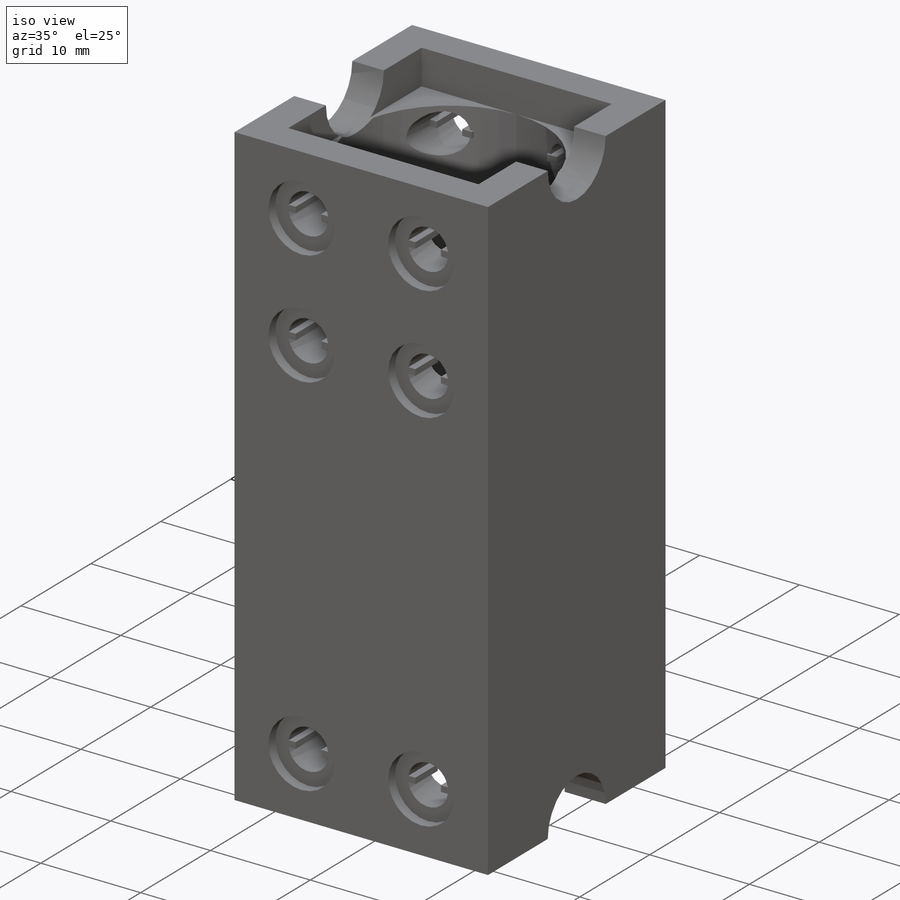
[diagram: iso view]
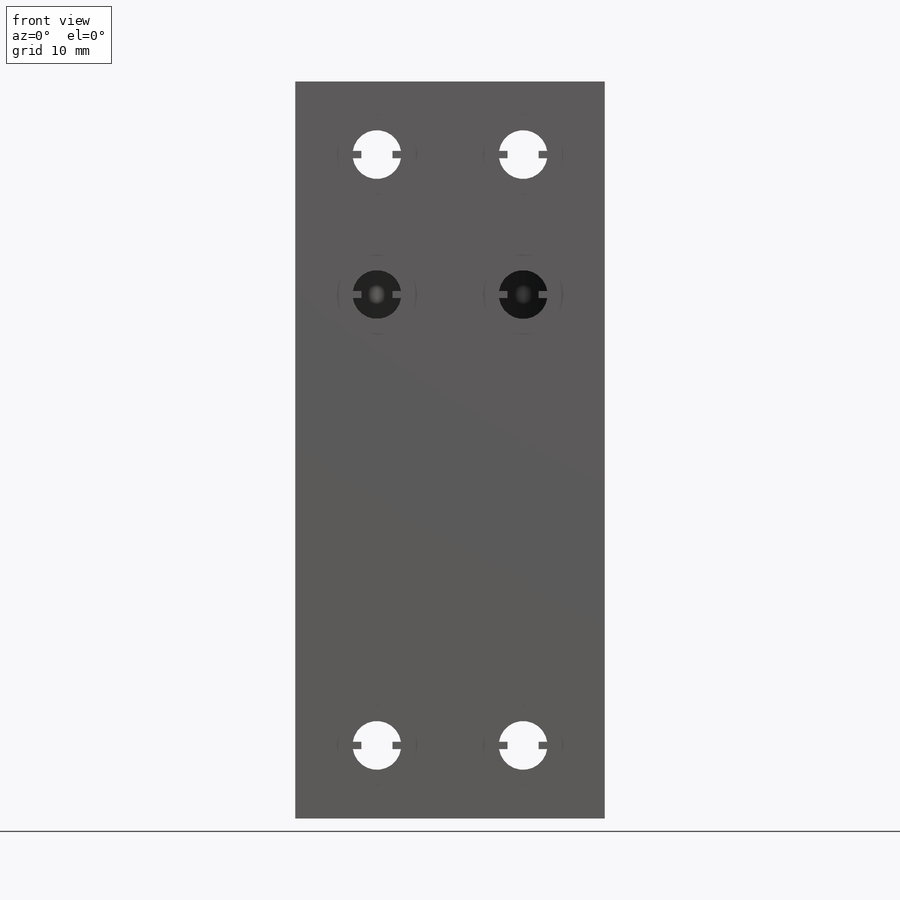
[diagram: front view]
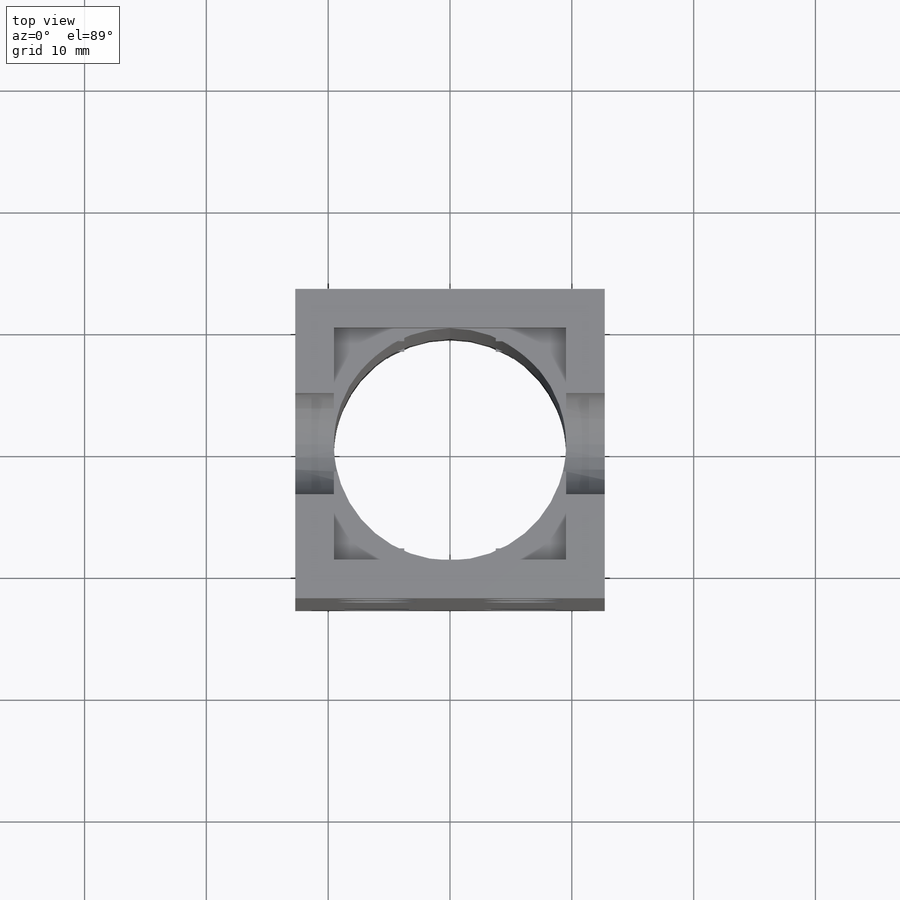
[diagram: top view]
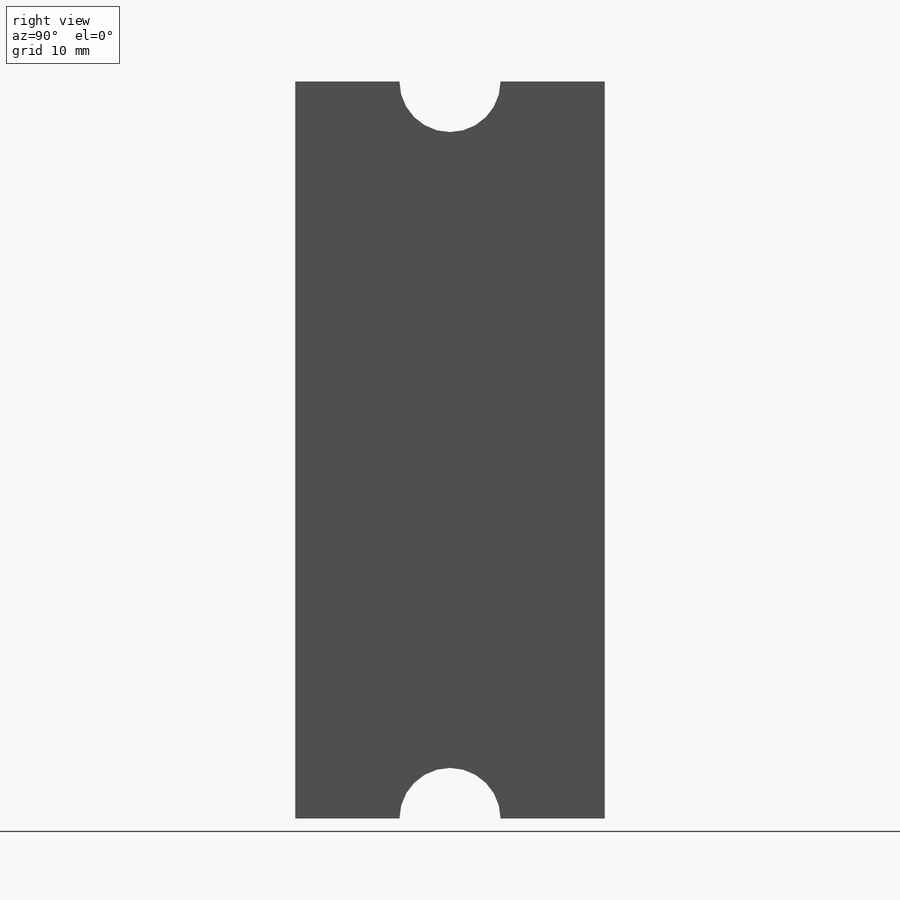
[diagram: right view]
SOLIDWORKS PART (.sldprt)
format: sldprt  version: not decoded by parser v0  size: 2,640,896 bytes
history: native  units: mm
features: sketch x13, cut_extrude x8, extrude x3, mirror x3, material x1, fillet x1, plane x1 (+13 scaffold rows collapsed)
feature tree (43):
  scaffold x13  (default folders/planes/origin — collapsed)
  material  "Material <not specified>"
  sketch  "Sketch1"  dims[D1=25.4mm D2=25.4mm D3=3.175mm]
  extrude  "Boss-Extrude1"  Depth=60.5mm
  sketch  "Sketch2"  dims[c1.D1=2.5mm c1.D2=6.0mm c1.D3=12.0mm c2.D2=6.0mm c2.D4=~30.839861mm]
  cut_extrude  "Cut-Extrude1"  [1 undecoded]
  sketch  "Sketch3"  dims[D1=8.0mm]
  cut_extrude  "Cut-Extrude2"  [1 undecoded]
  mirror  "Mirror2"
  sketch  "Sketch9"  dims[D1=11.5mm]
  cut_extrude  "Cut-Extrude7"  [1 undecoded]
  fillet  "Fillet1"  Radius=9.5mm
  sketch  "Sketch4"  dims[D3=2.35mm D1=15.56mm D2=15.56mm]
  sketch  "Sketch7"  dims[D1=19.06mm]
  cut_extrude  "Cut-Extrude4"  Depth=3.5mm
  cut_extrude  "Cut-Extrude5"  Depth=8mm
  sketch  "Sketch10"  dims[D1=4.3mm D2=7.5mm]
  sketch  "Sketch11"  dims[c1.D1=21.8mm c1.D2=5.0mm c1.D3=~2.886751mm c2.D3=120.0deg c2.D4=2.5mm c3.D4=120.0deg c3.D5=~1.443376mm c4.D5=120.0deg c4.D6=2.5mm c5.D6=120.0deg c6.D6=~1.443376mm c7.D6=120.0deg c7.D7=0.1mm]
  cut_extrude  "Cut-Extrude8"  Depth=2.4mm
  plane  "Plane1"  Offset=0.8mm
  sketch  "Sketch13"  dims[D1=0.6mm D2=0.7mm]
  extrude  "Boss-Extrude3"  Depth=3.4mm
  mirror  "Mirror3"
  sketch  "Sketch14"  dims[D1=0.6mm]
  extrude  "Boss-Extrude4"  Depth=3.4mm
  sketch  "Sketch15"  dims[D1=2.7mm D2=1.5875mm]
  sketch  "Sketch16"  dims[D1=6.6mm]
  cut_extrude  "Cut-Extrude9"  Depth=1mm
  mirror  "Mirror4"
  sketch  "Sketch17"
  cut_extrude  "Cut-Extrude10"  [1 undecoded]
decode coverage: 20 of 28 modeling features carry decoded parameters
note: ~ marks probable driven/reference dimensions
note: 4 parameter values undecoded
summary: no parameter record found for 4 features
note: suppression state not decoded; provenance and decode notes live in map.json
